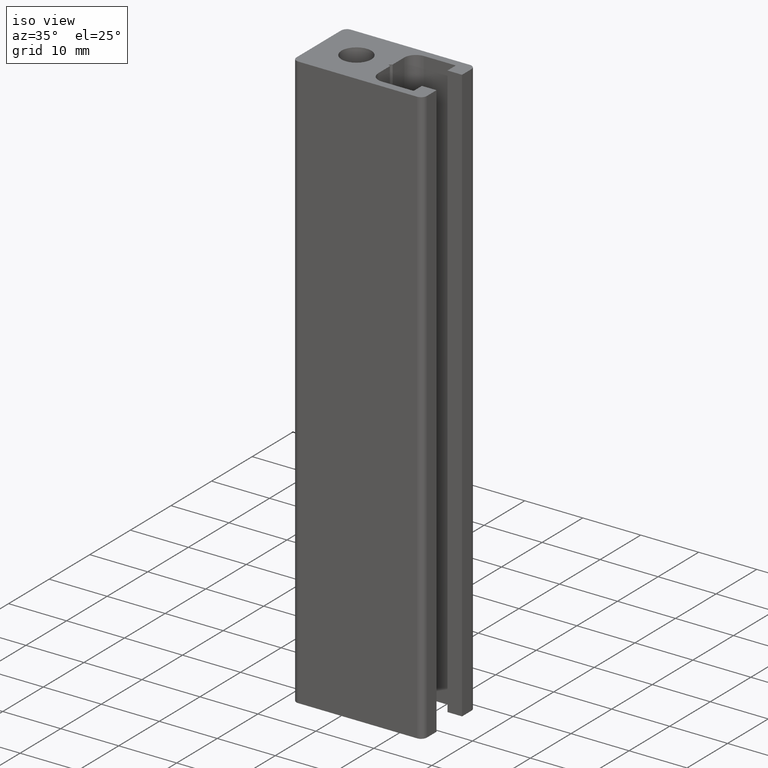
[diagram: clean part render]
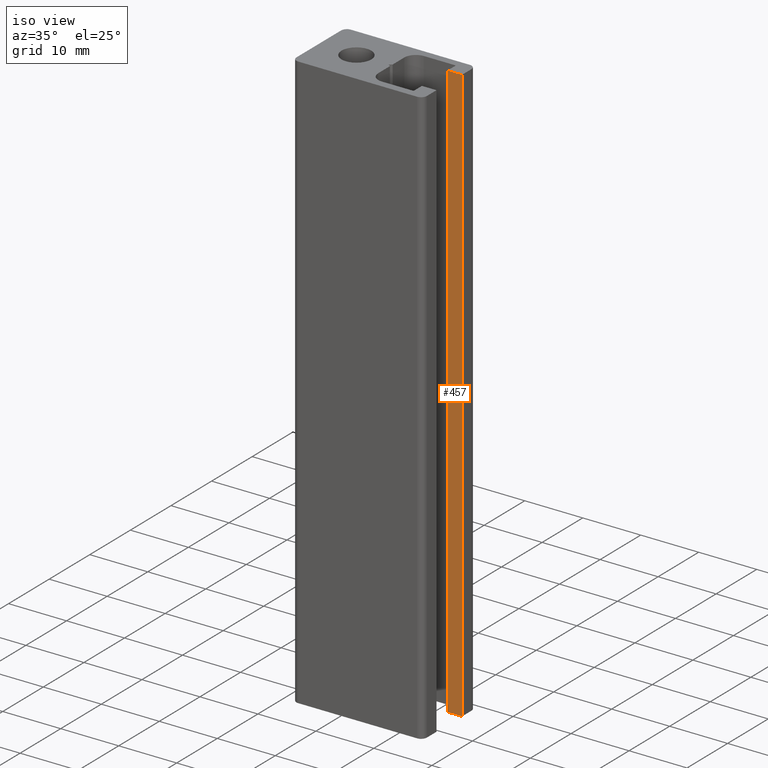
[diagram: same view with one face highlighted and labeled with its STEP entity id]
A machine part, iso view. The second image highlights one B-rep face of the part: STEP entity #457.
In plain terms, the highlighted planar face has unit normal (0, 1, 0).
Its self-contained STEP definition (entity closure, byte-faithful):
#38=LINE('',#701,#89);
#39=LINE('',#703,#90);
#40=LINE('',#705,#91);
#41=LINE('',#706,#92);
#89=VECTOR('',#565,2.49999999999999);
#90=VECTOR('',#566,100.);
#91=VECTOR('',#567,2.49999999999999);
#92=VECTOR('',#568,100.);
#124=PLANE('',#487);
#146=FACE_OUTER_BOUND('',#171,.T.);
#171=EDGE_LOOP('',(#345,#346,#347,#348));
#222=VERTEX_POINT('',#699);
#223=VERTEX_POINT('',#700);
#224=VERTEX_POINT('',#702);
#225=VERTEX_POINT('',#704);
#273=EDGE_CURVE('',#222,#223,#38,.T.);
#274=EDGE_CURVE('',#224,#222,#39,.T.);
#275=EDGE_CURVE('',#225,#224,#40,.T.);
#276=EDGE_CURVE('',#223,#225,#41,.T.);
#345=ORIENTED_EDGE('',*,*,#273,.F.);
#346=ORIENTED_EDGE('',*,*,#274,.F.);
#347=ORIENTED_EDGE('',*,*,#275,.F.);
#348=ORIENTED_EDGE('',*,*,#276,.F.);
#457=ADVANCED_FACE('',(#146),#124,.F.);
#487=AXIS2_PLACEMENT_3D('',#698,#563,#564);
#563=DIRECTION('center_axis',(2.22044604925032E-16,1.,0.));
#564=DIRECTION('ref_axis',(0.,0.,1.));
#565=DIRECTION('',(1.,-2.22044604925032E-16,0.));
#566=DIRECTION('',(0.,0.,1.));
#567=DIRECTION('',(-1.,2.22044604925032E-16,0.));
#568=DIRECTION('',(0.,0.,-1.));
#698=CARTESIAN_POINT('Origin',(13.5,3.15,0.));
#699=CARTESIAN_POINT('',(13.5,3.15,100.));
#700=CARTESIAN_POINT('',(16.,3.15,100.));
#701=CARTESIAN_POINT('',(9.125,3.15,100.));
#702=CARTESIAN_POINT('',(13.5,3.15,0.));
#703=CARTESIAN_POINT('',(13.5,3.15,0.));
#704=CARTESIAN_POINT('',(16.,3.15,0.));
#705=CARTESIAN_POINT('',(9.125,3.15,0.));
#706=CARTESIAN_POINT('',(16.,3.14999999999999,0.));